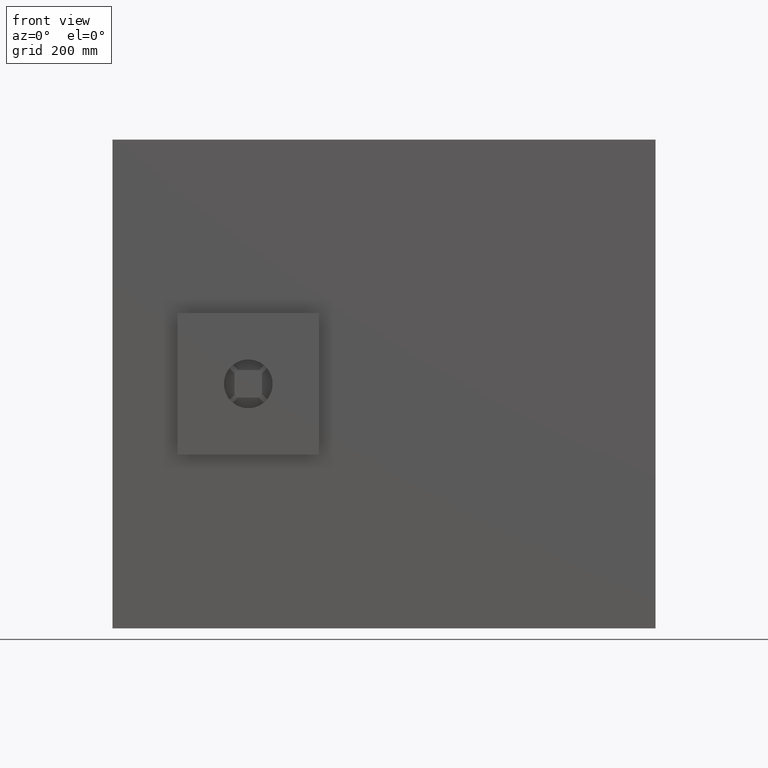
[diagram: clean part render]
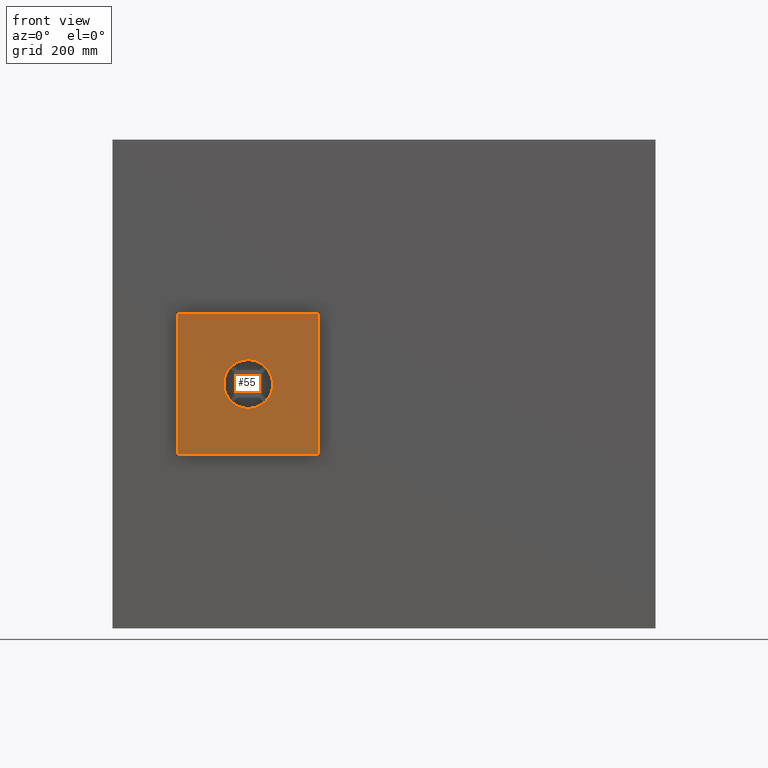
[diagram: same view with one face highlighted and labeled with its STEP entity id]
A machine part, front view. The second image highlights one B-rep face of the part: STEP entity #55.
In plain terms, the highlighted planar face has unit normal (0, -1, 0).
Its self-contained STEP definition (entity closure, byte-faithful):
#55 = ADVANCED_FACE ( 'NONE', ( #1798, #2378 ), #331, .T. ) ;
#128 = EDGE_LOOP ( 'NONE', ( #1596, #1936, #289, #776 ) ) ;
#289 = ORIENTED_EDGE ( 'NONE', *, *, #2582, .T. ) ;
#331 = PLANE ( 'NONE',  #2750 ) ;
#365 = CIRCLE ( 'NONE', #3042, 44.99999999999996400 ) ;
#376 = VERTEX_POINT ( 'NONE', #2874 ) ;
#449 = CARTESIAN_POINT ( 'NONE',  ( -379.9999999999998900, -26.00000000000002100, 129.9999999999997700 ) ) ;
#458 = EDGE_LOOP ( 'NONE', ( #477, #2585 ) ) ;
#472 = DIRECTION ( 'NONE',  ( -1.000000000000000000, -0.0000000000000000000, -0.0000000000000000000 ) ) ;
#477 = ORIENTED_EDGE ( 'NONE', *, *, #1313, .T. ) ;
#593 = DIRECTION ( 'NONE',  ( -1.067522139062650400E-016, 0.0000000000000000000, 1.000000000000000000 ) ) ;
#776 = ORIENTED_EDGE ( 'NONE', *, *, #1424, .T. ) ;
#817 = DIRECTION ( 'NONE',  ( 0.0000000000000000000, -0.0000000000000000000, -1.000000000000000000 ) ) ;
#827 = DIRECTION ( 'NONE',  ( 0.0000000000000000000, -1.000000000000000000, 0.0000000000000000000 ) ) ;
#868 = CARTESIAN_POINT ( 'NONE',  ( -120.0000000000001100, -26.00000000000002100, 129.9999999999997700 ) ) ;
#889 = VERTEX_POINT ( 'NONE', #3286 ) ;
#900 = CARTESIAN_POINT ( 'NONE',  ( -379.9999999999998900, -26.00000000000002100, 129.9999999999997700 ) ) ;
#1096 = CARTESIAN_POINT ( 'NONE',  ( -120.0000000000001100, -26.00000000000002100, 129.9999999999997700 ) ) ;
#1313 = EDGE_CURVE ( 'NONE', #376, #1740, #1657, .T. ) ;
#1361 = EDGE_CURVE ( 'NONE', #1740, #376, #365, .T. ) ;
#1424 = EDGE_CURVE ( 'NONE', #2675, #889, #2605, .T. ) ;
#1556 = CARTESIAN_POINT ( 'NONE',  ( -250.0000000000000000, -26.00000000000002100, -2.220446049250313100E-013 ) ) ;
#1580 = CARTESIAN_POINT ( 'NONE',  ( -250.0000000000000000, -26.00000000000002100, -2.220446049250313100E-013 ) ) ;
#1596 = ORIENTED_EDGE ( 'NONE', *, *, #3280, .T. ) ;
#1598 = DIRECTION ( 'NONE',  ( -0.0000000000000000000, 1.000000000000000000, -0.0000000000000000000 ) ) ;
#1646 = CARTESIAN_POINT ( 'NONE',  ( -379.9999999999998900, -26.00000000000002100, -130.0000000000002300 ) ) ;
#1657 = CIRCLE ( 'NONE', #2649, 44.99999999999996400 ) ;
#1701 = DIRECTION ( 'NONE',  ( 0.0000000000000000000, 0.0000000000000000000, -1.000000000000000000 ) ) ;
#1740 = VERTEX_POINT ( 'NONE', #2404 ) ;
#1787 = VERTEX_POINT ( 'NONE', #868 ) ;
#1798 = FACE_BOUND ( 'NONE', #458, .T. ) ;
#1832 = VERTEX_POINT ( 'NONE', #900 ) ;
#1936 = ORIENTED_EDGE ( 'NONE', *, *, #2816, .T. ) ;
#2274 = DIRECTION ( 'NONE',  ( 1.000000000000000000, 0.0000000000000000000, 0.0000000000000000000 ) ) ;
#2276 = CARTESIAN_POINT ( 'NONE',  ( 0.0000000000000000000, -26.00000000000002100, 0.0000000000000000000 ) ) ;
#2378 = FACE_OUTER_BOUND ( 'NONE', #128, .T. ) ;
#2404 = CARTESIAN_POINT ( 'NONE',  ( -250.0000000000000000, -26.00000000000002100, -45.00000000000018500 ) ) ;
#2485 = LINE ( 'NONE', #2691, #3285 ) ;
#2512 = LINE ( 'NONE', #449, #2516 ) ;
#2516 = VECTOR ( 'NONE', #472, 1000.000000000000000 ) ;
#2582 = EDGE_CURVE ( 'NONE', #1832, #2675, #2485, .T. ) ;
#2585 = ORIENTED_EDGE ( 'NONE', *, *, #1361, .T. ) ;
#2605 = LINE ( 'NONE', #3254, #2842 ) ;
#2649 = AXIS2_PLACEMENT_3D ( 'NONE', #1580, #1598, #1701 ) ;
#2675 = VERTEX_POINT ( 'NONE', #1646 ) ;
#2677 = VECTOR ( 'NONE', #593, 1000.000000000000000 ) ;
#2691 = CARTESIAN_POINT ( 'NONE',  ( -379.9999999999998900, -26.00000000000002100, 129.9999999999997700 ) ) ;
#2750 = AXIS2_PLACEMENT_3D ( 'NONE', #2276, #827, #817 ) ;
#2781 = DIRECTION ( 'NONE',  ( 0.0000000000000000000, 0.0000000000000000000, -1.000000000000000000 ) ) ;
#2816 = EDGE_CURVE ( 'NONE', #1787, #1832, #2512, .T. ) ;
#2842 = VECTOR ( 'NONE', #2274, 1000.000000000000000 ) ;
#2874 = CARTESIAN_POINT ( 'NONE',  ( -250.0000000000000000, -26.00000000000002100, 44.99999999999974400 ) ) ;
#2918 = LINE ( 'NONE', #1096, #2677 ) ;
#2997 = DIRECTION ( 'NONE',  ( 0.0000000000000000000, -0.0000000000000000000, -1.000000000000000000 ) ) ;
#3042 = AXIS2_PLACEMENT_3D ( 'NONE', #1556, #3072, #2781 ) ;
#3072 = DIRECTION ( 'NONE',  ( -0.0000000000000000000, 1.000000000000000000, -0.0000000000000000000 ) ) ;
#3254 = CARTESIAN_POINT ( 'NONE',  ( -379.9999999999998900, -26.00000000000002100, -130.0000000000002300 ) ) ;
#3280 = EDGE_CURVE ( 'NONE', #889, #1787, #2918, .T. ) ;
#3285 = VECTOR ( 'NONE', #2997, 1000.000000000000000 ) ;
#3286 = CARTESIAN_POINT ( 'NONE',  ( -120.0000000000001100, -26.00000000000002100, -130.0000000000002300 ) ) ;